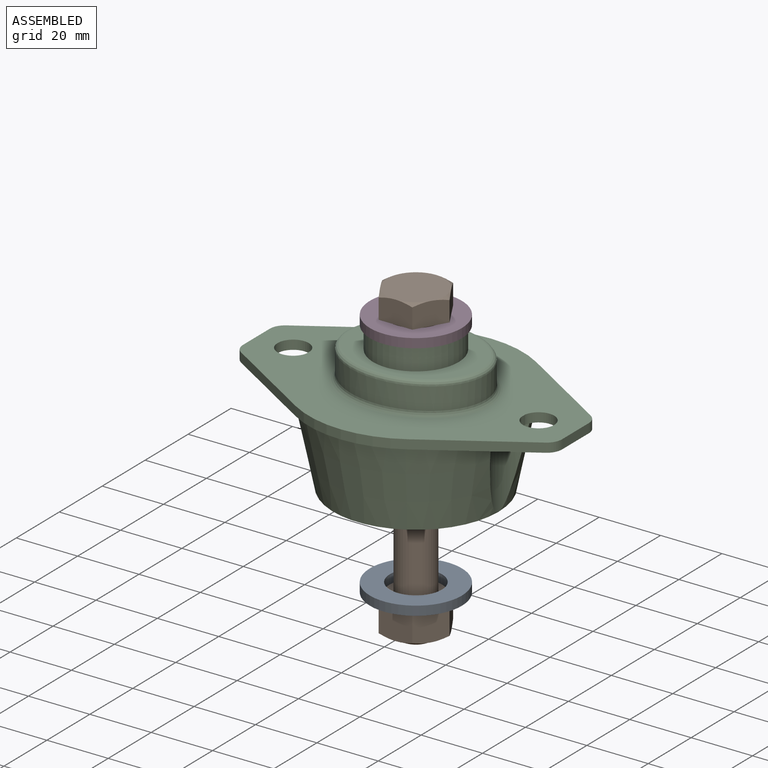
[diagram: assembled view]
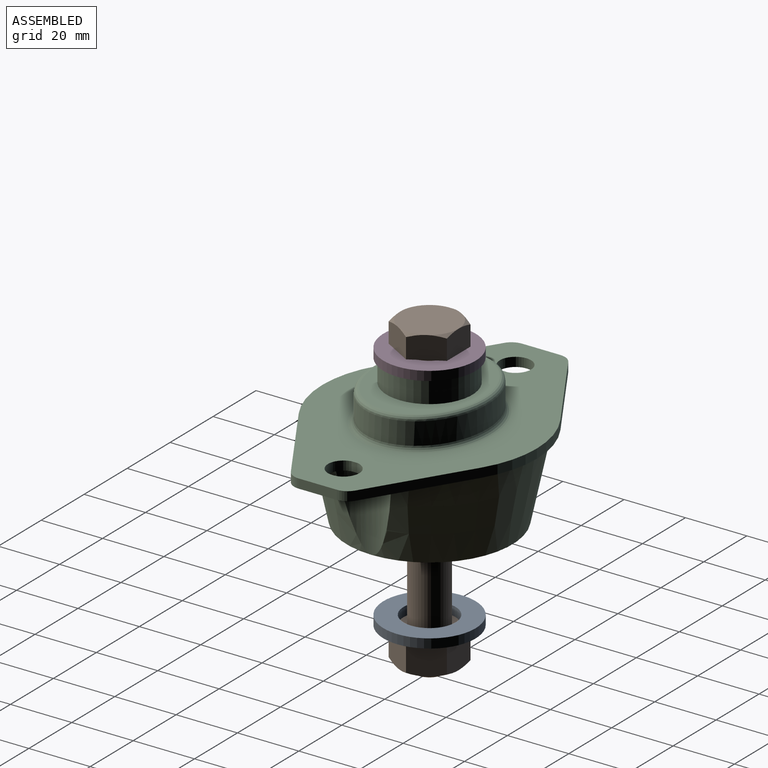
[diagram: assembled view, second angle]
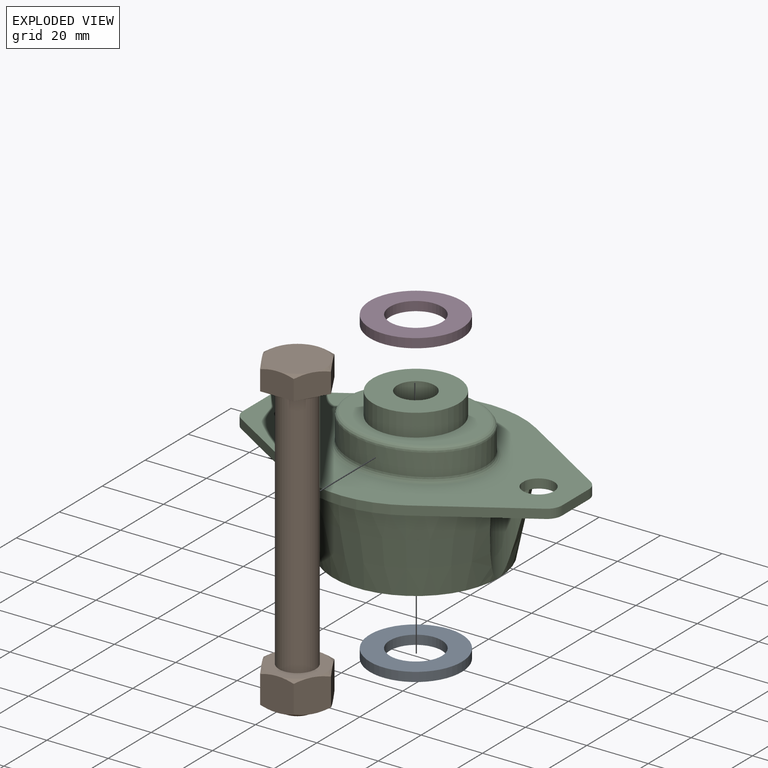
[diagram: exploded view]
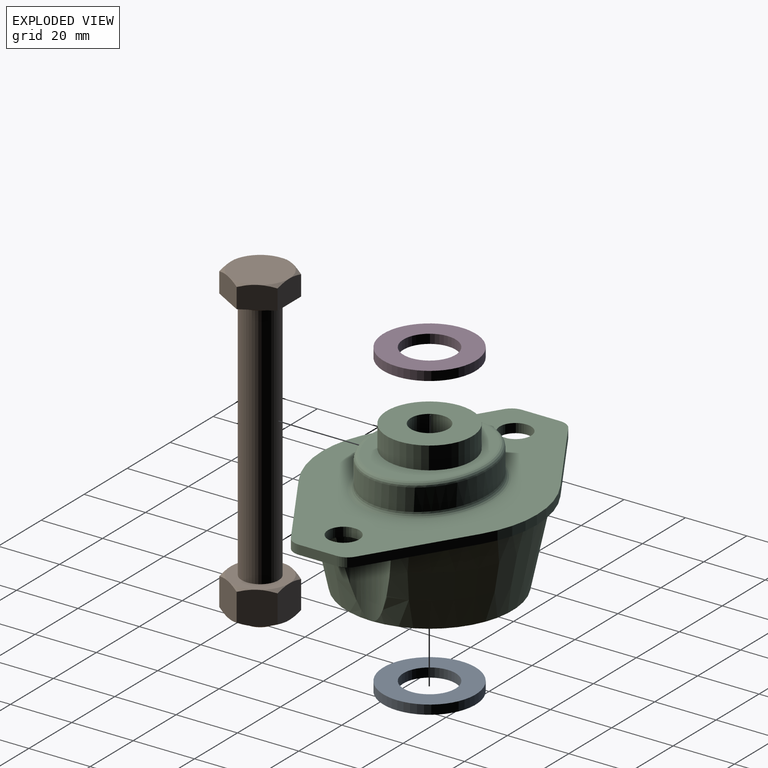
[diagram: exploded view, second angle]
ASSEMBLY  parts=4 mates=3
PART A: 4 faces, bbox 3x30x30 mm
  f0: plane 30x30mm, normal (-1,0,0), area 479.9mm2, adj f1,f3
  f1: cylinder r=8.5mm len=17mm, axis (1,0,0), area 160.2mm2, adj f0,f2
  f2: plane 30x30mm, normal (1,0,0), area 479.9mm2, adj f1,f3
  f3: cylinder r=15mm len=30mm, axis (1,0,0), area 282.7mm2, adj f0,f2
PART B: 41 faces, bbox 103x21.9x21.9 mm
  f0: cone r=9.5mm half-angle=60deg, axis (1,0,0), area 5.6mm2, adj f24,f27,f28
  f1: cone r=9.5mm half-angle=60deg, axis (1,0,0), area 5.6mm2, adj f24,f26,f27
  f2: cone r=9.5mm half-angle=60deg, axis (1,0,0), area 5.6mm2, adj f24,f25,f26
  f3: cone r=9.5mm half-angle=60deg, axis (1,0,0), area 5.6mm2, adj f24,f28,f29
  f4: cone r=9.5mm half-angle=60deg, axis (1,0,0), area 5.6mm2, adj f24,f25,f30
  f5: cone r=9.5mm half-angle=60deg, axis (1,0,0), area 5.6mm2, adj f24,f29,f30
  f6: cylinder r=6mm len=81.23mm, axis (1,0,0), area 3062.1mm2, adj f10,f24
  f7: plane 21.94x19mm, normal (1,0,0), area 61.2mm2, adj f8,f11,f12,f13,f14,f15,f16
  f8: cone r=8.95mm half-angle=30deg, axis (-1,0,0), area 38.2mm2, adj f7,f9
  f9: plane 17.2x17.2mm, normal (1,0,0), area 95.5mm2, adj f8,f10
  f10: torus R=6.6mm, axis (1,0,0), area 36.8mm2, adj f6,f9
  f11: plane 10.98x7.4mm, normal (0,0,1), area 78mm2, adj f7,f12,f16,f17,f23
  f12: plane 9.5x7.4mm, normal (0,0.87,0.5), area 78mm2, adj f7,f11,f13,f17,f21
  f13: plane 9.5x7.4mm, normal (0,0.87,-0.5), area 78mm2, adj f7,f12,f14,f20,f21
  f14: plane 10.98x7.4mm, normal (0,0,-1), area 78mm2, adj f7,f13,f15,f19,f20
  f15: plane 9.5x7.4mm, normal (0,-0.87,-0.5), area 78mm2, adj f7,f14,f16,f18,f19
  f16: plane 9.5x7.4mm, normal (0,-0.87,0.5), area 78mm2, adj f7,f11,f15,f18,f23
  f17: cone r=9.5mm half-angle=60deg, axis (1,0,0), area 5.6mm2, adj f11,f12,f22
  f18: cone r=9.5mm half-angle=60deg, axis (1,0,0), area 5.6mm2, adj f15,f16,f22
  f19: cone r=9.5mm half-angle=60deg, axis (1,0,0), area 5.6mm2, adj f14,f15,f22
  f20: cone r=9.5mm half-angle=60deg, axis (1,0,0), area 5.6mm2, adj f13,f14,f22
  f21: cone r=9.5mm half-angle=60deg, axis (1,0,0), area 5.6mm2, adj f12,f13,f22
  f22: plane 19x19mm, normal (-1,0,0), area 283.5mm2, adj f17,f18,f19,f20,f21,f23
  f23: cone r=9.5mm half-angle=60deg, axis (1,0,0), area 5.6mm2, adj f11,f16,f22
  f24: plane 19x19mm, normal (-1,0,0), area 170.4mm2, adj f0,f1,f2,f3,f4,f5,f6
  f25: plane 10.98x10.8mm, normal (0,0,1), area 112.1mm2, adj f2,f4,f26,f30,f37,f40
  f26: plane 10.81x9.5mm, normal (0,0.87,0.5), area 112.1mm2, adj f1,f2,f25,f27,f37,f38
  f27: plane 10.81x9.5mm, normal (0,0.87,-0.5), area 112.1mm2, adj f0,f1,f26,f28,f34,f38
  f28: plane 10.98x10.8mm, normal (0,0,-1), area 112.1mm2, adj f0,f3,f27,f29,f34,f35
  f29: plane 10.81x9.5mm, normal (0,-0.87,-0.5), area 112.1mm2, adj f3,f5,f28,f30,f35,f36
  f30: plane 10.81x9.5mm, normal (0,-0.87,0.5), area 112.1mm2, adj f4,f5,f25,f29,f36,f40
  f31: plane 9.85x9.85mm, normal (1,0,0), area 76.2mm2, adj f32
  f32: cone r=6mm half-angle=45deg, axis (-1,0,0), area 52.1mm2, adj f31,f33
  f33: cylinder r=6mm len=12mm, axis (1,0,0), area 49.1mm2, adj f32,f39
  f34: cone r=11.4mm half-angle=60deg, axis (-1,0,0), area 5.6mm2, adj f27,f28,f39
  f35: cone r=11.4mm half-angle=60deg, axis (-1,0,0), area 5.6mm2, adj f28,f29,f39
  f36: cone r=11.4mm half-angle=60deg, axis (-1,0,0), area 5.6mm2, adj f29,f30,f39
  f37: cone r=11.4mm half-angle=60deg, axis (-1,0,0), area 5.6mm2, adj f25,f26,f39
  f38: cone r=11.4mm half-angle=60deg, axis (-1,0,0), area 5.6mm2, adj f26,f27,f39
  f39: plane 19x19mm, normal (1,0,0), area 170.4mm2, adj f33,f34,f35,f36,f37,f38,f40
  f40: cone r=11.4mm half-angle=60deg, axis (-1,0,0), area 5.6mm2, adj f25,f30,f39
PART C: 30 faces, bbox 104x70x47.9 mm
  f0: cone r=27mm half-angle=12deg, axis (0,0,1), area 2257.5mm2, adj f19,f27,f28,f29
  f1: cone r=27mm half-angle=12deg, axis (0,0,1), area 2257.5mm2, adj f19,f27,f28,f29
  f2: cylinder r=35mm len=3mm, axis (0,0,-1), area 5.6mm2, adj f17,f18,f19
  f3: plane 31.22x19.3mm, normal (-0.53,0.85,0), area 110.1mm2, adj f4,f15,f18,f19
  f4: cylinder r=5mm len=4.25mm, axis (0,0,-1), area 15.3mm2, adj f3,f5,f18,f19
  f5: plane 12.43x3mm, normal (-1,0,0), area 37.3mm2, adj f4,f6,f18,f19
  f6: cylinder r=5mm len=4.25mm, axis (0,0,-1), area 15.3mm2, adj f5,f7,f18,f19
  f7: plane 31.22x19.3mm, normal (-0.53,-0.85,0), area 110.1mm2, adj f6,f8,f18,f19
  f8: cylinder r=35mm len=36.81mm, axis (0,0,-1), area 116.3mm2, adj f7,f9,f18,f19
  f9: plane 31.22x19.3mm, normal (0.53,-0.85,0), area 110.1mm2, adj f8,f10,f18,f19
  f10: cylinder r=5mm len=4.25mm, axis (0,0,-1), area 15.3mm2, adj f9,f11,f18,f19
  f11: plane 12.43x3mm, normal (1,0,0), area 37.3mm2, adj f10,f12,f18,f19
  f12: cylinder r=5mm len=4.25mm, axis (0,0,-1), area 15.3mm2, adj f11,f13,f18,f19
  f13: plane 31.22x19.3mm, normal (0.53,0.85,0), area 110.1mm2, adj f12,f15,f18,f19
  f14: cylinder r=5.1mm len=10.2mm, axis (0,0,-1), area 90.5mm2, adj f16,f18,f19
  f15: cylinder r=35mm len=36.81mm, axis (0,0,-1), area 116.3mm2, adj f3,f13,f18,f19
  f16: cylinder r=35mm len=3mm, axis (0,0,-1), area 5.6mm2, adj f14,f18,f19
  f17: cylinder r=5.1mm len=10.2mm, axis (0,0,-1), area 90.5mm2, adj f2,f18,f19
  f18: plane 104x70mm, normal (0,0,1), area 3326.7mm2, adj f2,f3,f4,f5,f6,f7,f8,f9
  f19: plane 104x70mm, normal (0,0,-1), area 1663.9mm2, adj f0,f1,f2,f3,f4,f5,f6,f7
  f20: extruded ~45.64x37.75mm, area 946.5mm2, adj f22,f23
  f21: plane 42.7x34.82mm, normal (0,0,1), area 555.2mm2, adj f22,f25
  f22: bspline ~45.7x37.82mm, area 301.7mm2, adj f20,f21
  f23: bspline ~48.7x40.82mm, area 317.9mm2, adj f18,f20
  f24: cylinder r=6.1mm len=47.89mm, axis (0,0,-1), area 1835.7mm2, adj f26,f27
  f25: cylinder r=13.95mm len=27.9mm, axis (0,0,-1), area 639.8mm2, adj f21,f26
  f26: plane 27.9x27.9mm, normal (0,0,1), area 494.5mm2, adj f24,f25
  f27: plane 54x54mm, normal (0,0,-1), area 2173.3mm2, adj f0,f1,f24
  f28: cylinder r=13mm len=27.4mm, axis (0,0,1), area 386.7mm2, adj f0,f1,f19
  f29: cylinder r=13mm len=27.4mm, axis (0,0,1), area 386.7mm2, adj f0,f1,f19
PART D: same geometry as A
PLACE A rot(axis=(0.58,0.58,-0.58),120deg) t=(-3.99,-8.17,-60.68)mm
PLACE B rot(axis=(0.58,0.58,-0.58),120deg) t=(-3.99,-8.17,18.15)mm
PLACE C t=(-3.99,-8.17,-5.35)mm
PLACE D rot(axis=(-0.58,-0.58,-0.58),120deg) t=(-3.99,-8.17,15.15)mm
MATE fastened D.f1 <-> C.f24  axis (0,0,-1) through (-3.99,-8.17,15.15)mm
MATE fastened B.f0 <-> A.f1  axis (0,0,-1) through (-3.99,-8.17,-63.68)mm
MATE fastened B.f0 <-> D.f1  axis (0,0,-1) through (-3.99,-8.17,18.15)mm
